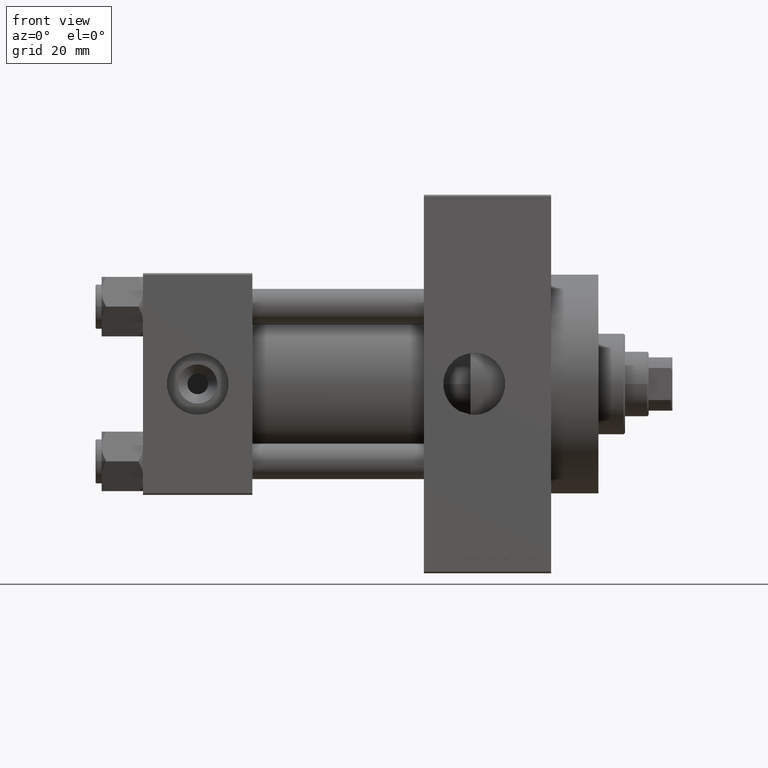
[diagram: clean part render]
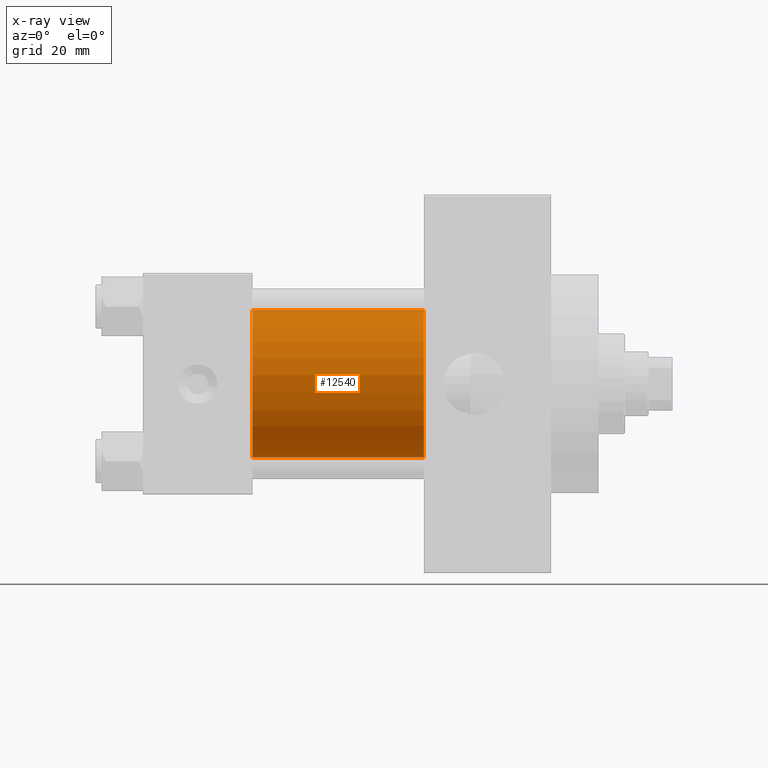
[diagram: x-ray — body ghosted, one internal face saturated and labeled with its STEP entity id]
A machine part, front view, then the same camera in x-ray: the body is ghosted and one INTERNAL B-rep face — a face not visible from any outside direction — is saturated and labeled: STEP entity #12540.
In plain terms, the highlighted cylindrical surface (partial cylindrical patch) has radius 25 mm, axis along (-1, -0, -0).
Its self-contained STEP definition (entity closure, byte-faithful):
#943 = VECTOR ( 'NONE', #19518, 1000.000000000000000 ) ;
#981 = ORIENTED_EDGE ( 'NONE', *, *, #35301, .T. ) ;
#2035 = CYLINDRICAL_SURFACE ( 'NONE', #5376, 25.00000000000000000 ) ;
#5376 = AXIS2_PLACEMENT_3D ( 'NONE', #35338, #43084, #43831 ) ;
#7904 = VERTEX_POINT ( 'NONE', #37260 ) ;
#8271 = CARTESIAN_POINT ( 'NONE',  ( 37.00000000000000000, -2.602085213965210642E-15, 0.000000000000000000 ) ) ;
#9305 = FACE_OUTER_BOUND ( 'NONE', #13099, .T. ) ;
#9766 = CARTESIAN_POINT ( 'NONE',  ( 95.00000000000000000, -2.602085213965210642E-15, 0.000000000000000000 ) ) ;
#10968 = ORIENTED_EDGE ( 'NONE', *, *, #25443, .F. ) ;
#12540 = ADVANCED_FACE ( 'NONE', ( #9305 ), #2035, .F. ) ;
#12917 = CIRCLE ( 'NONE', #32102, 25.00000000000000000 ) ;
#13099 = EDGE_LOOP ( 'NONE', ( #40582, #981, #10968, #48052 ) ) ;
#14057 = LINE ( 'NONE', #41832, #14934 ) ;
#14781 = DIRECTION ( 'NONE',  ( -1.000000000000000000, -0.000000000000000000, -0.000000000000000000 ) ) ;
#14934 = VECTOR ( 'NONE', #14781, 1000.000000000000000 ) ;
#15235 = AXIS2_PLACEMENT_3D ( 'NONE', #8271, #46060, #44896 ) ;
#19518 = DIRECTION ( 'NONE',  ( -1.000000000000000000, -0.000000000000000000, -0.000000000000000000 ) ) ;
#23773 = LINE ( 'NONE', #39542, #943 ) ;
#25443 = EDGE_CURVE ( 'NONE', #35495, #39286, #26434, .T. ) ;
#26434 = CIRCLE ( 'NONE', #15235, 25.00000000000000000 ) ;
#27356 = EDGE_CURVE ( 'NONE', #40383, #35495, #23773, .T. ) ;
#31328 = CARTESIAN_POINT ( 'NONE',  ( 37.00000000000000000, 4.595317839031718093E-16, -25.00000000000000000 ) ) ;
#32102 = AXIS2_PLACEMENT_3D ( 'NONE', #9766, #41759, #45025 ) ;
#35065 = CARTESIAN_POINT ( 'NONE',  ( 37.00000000000000000, -2.602085213965210642E-15, 25.00000000000000000 ) ) ;
#35301 = EDGE_CURVE ( 'NONE', #7904, #39286, #14057, .T. ) ;
#35338 = CARTESIAN_POINT ( 'NONE',  ( 95.00000000000000000, -2.602085213965210642E-15, 0.000000000000000000 ) ) ;
#35495 = VERTEX_POINT ( 'NONE', #35065 ) ;
#37260 = CARTESIAN_POINT ( 'NONE',  ( 95.00000000000000000, 4.595317839031718093E-16, -25.00000000000000000 ) ) ;
#39286 = VERTEX_POINT ( 'NONE', #31328 ) ;
#39542 = CARTESIAN_POINT ( 'NONE',  ( 95.00000000000000000, -2.602085213965210642E-15, 25.00000000000000000 ) ) ;
#40383 = VERTEX_POINT ( 'NONE', #43443 ) ;
#40582 = ORIENTED_EDGE ( 'NONE', *, *, #49009, .T. ) ;
#41759 = DIRECTION ( 'NONE',  ( 1.000000000000000000, 0.000000000000000000, 0.000000000000000000 ) ) ;
#41832 = CARTESIAN_POINT ( 'NONE',  ( 95.00000000000000000, 4.595317839031718093E-16, -25.00000000000000000 ) ) ;
#43084 = DIRECTION ( 'NONE',  ( -1.000000000000000000, -0.000000000000000000, -0.000000000000000000 ) ) ;
#43443 = CARTESIAN_POINT ( 'NONE',  ( 95.00000000000000000, -2.602085213965210642E-15, 25.00000000000000000 ) ) ;
#43831 = DIRECTION ( 'NONE',  ( 0.000000000000000000, 0.000000000000000000, 1.000000000000000000 ) ) ;
#44896 = DIRECTION ( 'NONE',  ( 0.000000000000000000, 0.000000000000000000, -1.000000000000000000 ) ) ;
#45025 = DIRECTION ( 'NONE',  ( 0.000000000000000000, 0.000000000000000000, -1.000000000000000000 ) ) ;
#46060 = DIRECTION ( 'NONE',  ( 1.000000000000000000, 0.000000000000000000, 0.000000000000000000 ) ) ;
#48052 = ORIENTED_EDGE ( 'NONE', *, *, #27356, .F. ) ;
#49009 = EDGE_CURVE ( 'NONE', #40383, #7904, #12917, .T. ) ;